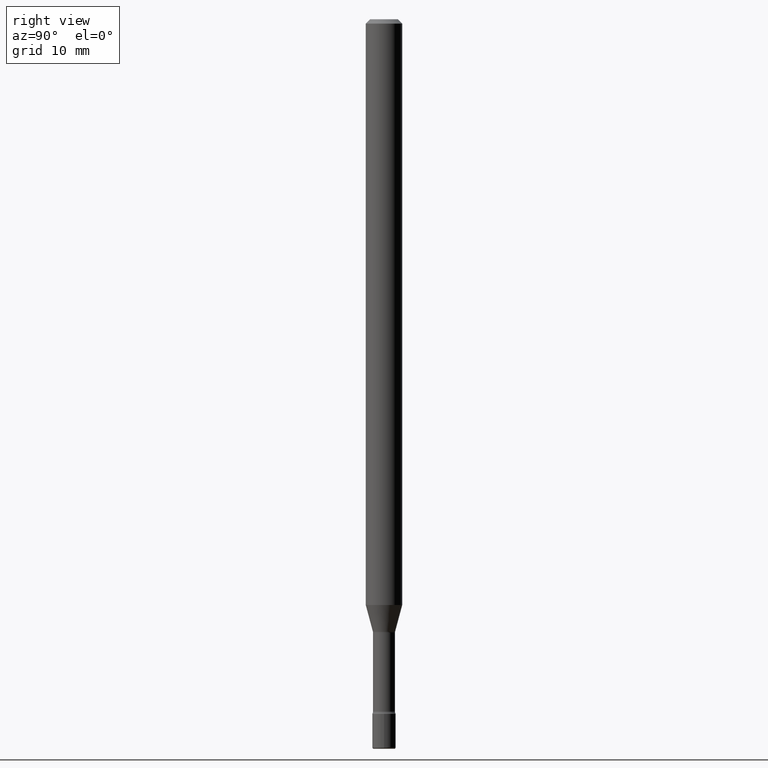
[diagram: clean part render]
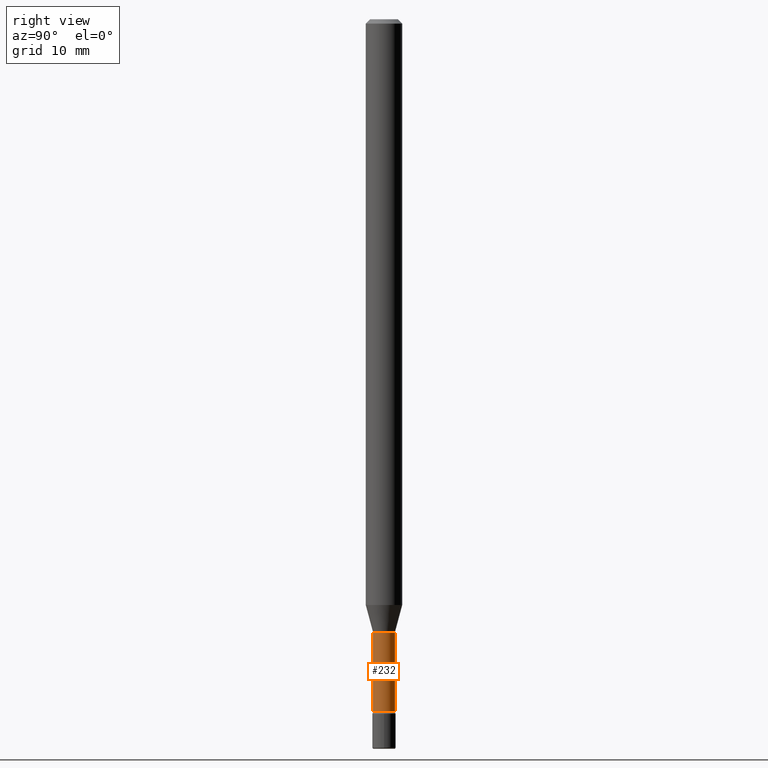
[diagram: same view with one face highlighted and labeled with its STEP entity id]
A machine part, right view. The second image highlights one B-rep face of the part: STEP entity #232.
In plain terms, the highlighted cylindrical surface (edge-blend (fillet) strip) has radius 0.955 mm, axis along (-0, 0, 1).
Its self-contained STEP definition (entity closure, byte-faithful):
#2 = DIRECTION ( 'NONE',  ( -2.445371158952634038E-29, 3.491621175237824120E-15, 1.000000000000000000 ) ) ;
#8 = DIRECTION ( 'NONE',  ( -2.445371158952634318E-29, 3.491621175237824120E-15, 1.000000000000000000 ) ) ;
#22 = EDGE_CURVE ( 'NONE', #206, #204, #127, .T. ) ;
#24 = ORIENTED_EDGE ( 'NONE', *, *, #22, .F. ) ;
#41 = CARTESIAN_POINT ( 'NONE',  ( -1.169113584055446105E-44, 1.669184350826100908E-30, 4.780733988912460139E-16 ) ) ;
#91 = LINE ( 'NONE', #347, #252 ) ;
#96 = CARTESIAN_POINT ( 'NONE',  ( -2.625593966809460162E-16, -0.03760000000000833509, -2.371861204020250025 ) ) ;
#99 = CARTESIAN_POINT ( 'NONE',  ( -2.625593966809521792E-16, -0.03760000000000733589, -2.101974787463810834 ) ) ;
#123 = DIRECTION ( 'NONE',  ( -2.445371158952634318E-29, 3.491621175237824120E-15, 1.000000000000000000 ) ) ;
#127 = CIRCLE ( 'NONE', #285, 0.03759999999999999454 ) ;
#147 = EDGE_CURVE ( 'NONE', #170, #206, #91, .T. ) ;
#170 = VERTEX_POINT ( 'NONE', #96 ) ;
#182 = CARTESIAN_POINT ( 'NONE',  ( 2.671640686457978283E-16, 0.03760000000000002923, 3.467884427023037687E-16 ) ) ;
#204 = VERTEX_POINT ( 'NONE', #532 ) ;
#206 = VERTEX_POINT ( 'NONE', #99 ) ;
#209 = AXIS2_PLACEMENT_3D ( 'NONE', #41, #8, #223 ) ;
#223 = DIRECTION ( 'NONE',  ( -6.982962677686265922E-15, -1.000000000000000000, 3.491621175237824120E-15 ) ) ;
#232 = ADVANCED_FACE ( 'NONE', ( #529 ), #429, .T. ) ;
#240 = EDGE_LOOP ( 'NONE', ( #431, #313, #24, #328 ) ) ;
#252 = VECTOR ( 'NONE', #394, 39.37007874015748143 ) ;
#259 = EDGE_CURVE ( 'NONE', #560, #204, #342, .T. ) ;
#285 = AXIS2_PLACEMENT_3D ( 'NONE', #460, #292, #324 ) ;
#292 = DIRECTION ( 'NONE',  ( -2.445371158952634318E-29, 3.491621175237824120E-15, 1.000000000000000000 ) ) ;
#313 = ORIENTED_EDGE ( 'NONE', *, *, #259, .T. ) ;
#324 = DIRECTION ( 'NONE',  ( -6.982962677686265922E-15, -1.000000000000000000, 0.000000000000000000 ) ) ;
#328 = ORIENTED_EDGE ( 'NONE', *, *, #147, .F. ) ;
#329 = DIRECTION ( 'NONE',  ( -6.982962677686265922E-15, -1.000000000000000000, 0.000000000000000000 ) ) ;
#342 = LINE ( 'NONE', #182, #502 ) ;
#347 = CARTESIAN_POINT ( 'NONE',  ( -2.625593966810038003E-16, -0.03760000000000002923, 6.093583550801884071E-16 ) ) ;
#353 = CIRCLE ( 'NONE', #514, 0.03760000000000005699 ) ;
#394 = DIRECTION ( 'NONE',  ( -2.445371158952634038E-29, 3.491621175237824120E-15, 1.000000000000000000 ) ) ;
#415 = CARTESIAN_POINT ( 'NONE',  ( 2.756905814749770095E-16, 0.03759999999999177195, -2.371861204020250025 ) ) ;
#429 = CYLINDRICAL_SURFACE ( 'NONE', #209, 0.03760000000000002923 ) ;
#431 = ORIENTED_EDGE ( 'NONE', *, *, #516, .T. ) ;
#459 = CARTESIAN_POINT ( 'NONE',  ( 5.800080981349790489E-29, -8.281640804682186145E-15, -2.371861204020250025 ) ) ;
#460 = CARTESIAN_POINT ( 'NONE',  ( 5.140108522109596657E-29, -7.339299677724666424E-15, -2.101974787463810834 ) ) ;
#502 = VECTOR ( 'NONE', #2, 39.37007874015748143 ) ;
#514 = AXIS2_PLACEMENT_3D ( 'NONE', #459, #123, #329 ) ;
#516 = EDGE_CURVE ( 'NONE', #170, #560, #353, .T. ) ;
#529 = FACE_OUTER_BOUND ( 'NONE', #240, .T. ) ;
#532 = CARTESIAN_POINT ( 'NONE',  ( 2.671640686458558096E-16, 0.03759999999999266013, -2.101974787463810834 ) ) ;
#560 = VERTEX_POINT ( 'NONE', #415 ) ;